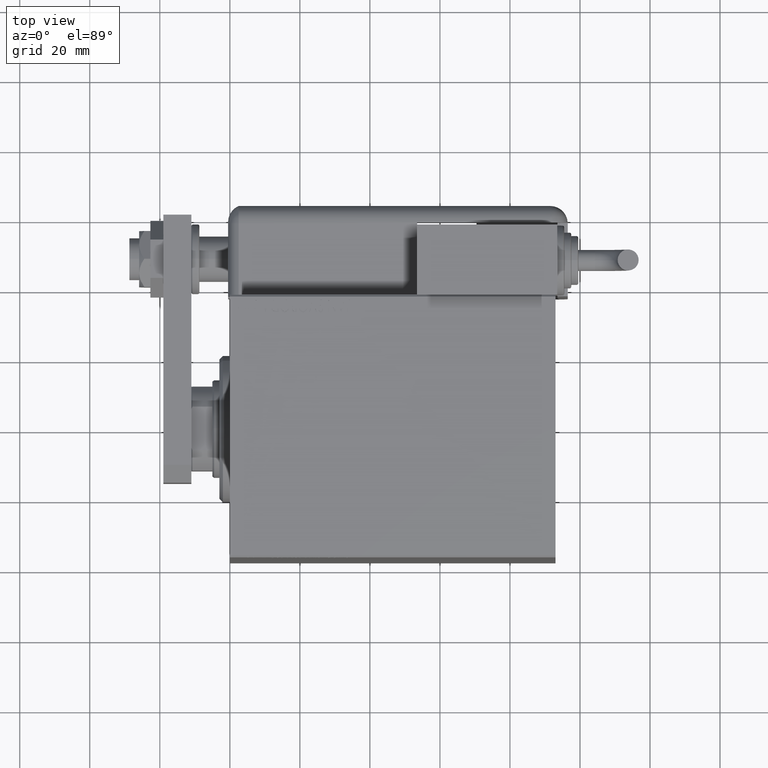
[diagram: clean part render]
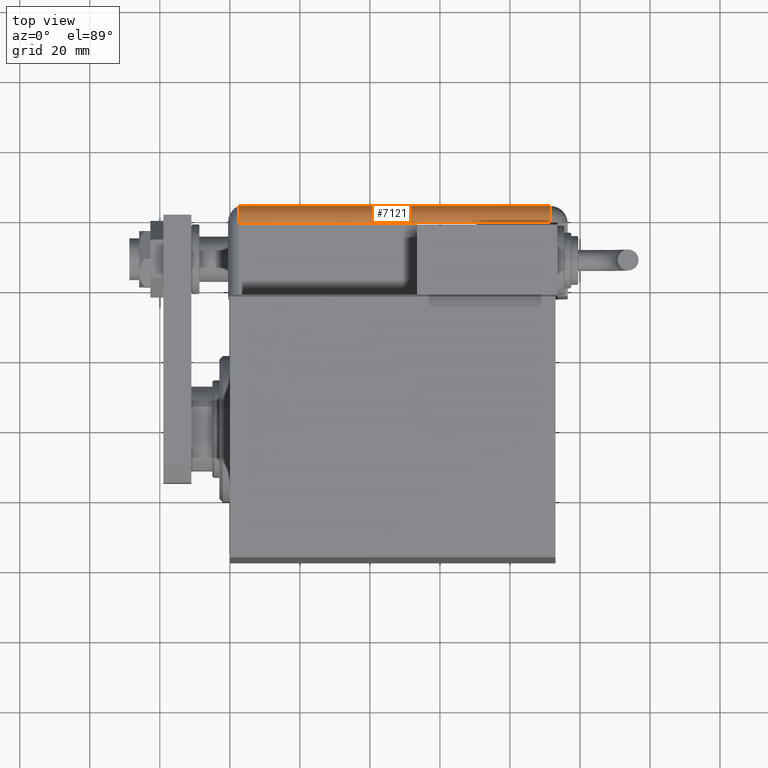
[diagram: same view with one face highlighted and labeled with its STEP entity id]
A machine part, top view. The second image highlights one B-rep face of the part: STEP entity #7121.
In plain terms, the highlighted cylindrical surface (edge-blend (fillet) strip) has radius 5 mm, axis along (1, -0, -0).
Its self-contained STEP definition (entity closure, byte-faithful):
#2319 = CARTESIAN_POINT ( 'NONE',  ( 23.99999999999999289, 20.79999999999998295, 94.00000000000000000 ) ) ;
#4536 = DIRECTION ( 'NONE',  ( -1.000000000000000000, 0.000000000000000000, 0.000000000000000000 ) ) ;
#4869 = DIRECTION ( 'NONE',  ( -0.000000000000000000, -0.000000000000000000, 1.000000000000000000 ) ) ;
#5265 = CIRCLE ( 'NONE', #27474, 5.000000000000000888 ) ;
#7121 = ADVANCED_FACE ( 'NONE', ( #57647 ), #15946, .T. ) ;
#7590 = ORIENTED_EDGE ( 'NONE', *, *, #48557, .T. ) ;
#9721 = EDGE_CURVE ( 'NONE', #41549, #52430, #21971, .T. ) ;
#10032 = VERTEX_POINT ( 'NONE', #45462 ) ;
#11039 = AXIS2_PLACEMENT_3D ( 'NONE', #50483, #45977, #4536 ) ;
#11258 = VECTOR ( 'NONE', #33477, 1000.000000000000000 ) ;
#12868 = DIRECTION ( 'NONE',  ( 0.000000000000000000, 0.000000000000000000, -1.000000000000000000 ) ) ;
#13199 = EDGE_CURVE ( 'NONE', #10032, #41549, #55443, .T. ) ;
#13900 = DIRECTION ( 'NONE',  ( -0.000000000000000000, 0.000000000000000000, -1.000000000000000000 ) ) ;
#14345 = VERTEX_POINT ( 'NONE', #28152 ) ;
#14864 = ORIENTED_EDGE ( 'NONE', *, *, #22032, .F. ) ;
#15021 = CARTESIAN_POINT ( 'NONE',  ( 28.99599839871871154, 20.99999999999998579, 94.00000000000000000 ) ) ;
#15287 = AXIS2_PLACEMENT_3D ( 'NONE', #50773, #13900, #37202 ) ;
#15946 = CYLINDRICAL_SURFACE ( 'NONE', #57174, 5.000000000000000888 ) ;
#16468 = VERTEX_POINT ( 'NONE', #28254 ) ;
#19575 = DIRECTION ( 'NONE',  ( 0.000000000000000000, 0.000000000000000000, -1.000000000000000000 ) ) ;
#19877 = DIRECTION ( 'NONE',  ( -1.000000000000000000, 0.000000000000000000, 0.000000000000000000 ) ) ;
#21971 = LINE ( 'NONE', #54285, #27369 ) ;
#22032 = EDGE_CURVE ( 'NONE', #14345, #10032, #27520, .T. ) ;
#22354 = EDGE_CURVE ( 'NONE', #29926, #16468, #55831, .T. ) ;
#23333 = DIRECTION ( 'NONE',  ( -1.000000000000000000, 0.000000000000000000, 0.000000000000000000 ) ) ;
#24090 = ORIENTED_EDGE ( 'NONE', *, *, #57438, .F. ) ;
#24532 = CARTESIAN_POINT ( 'NONE',  ( 23.99999999999999289, 20.79999999999998295, 5.000000000000004441 ) ) ;
#25321 = EDGE_LOOP ( 'NONE', ( #24090, #47609, #7590, #36605, #54915, #14864 ) ) ;
#27369 = VECTOR ( 'NONE', #12868, 1000.000000000000000 ) ;
#27474 = AXIS2_PLACEMENT_3D ( 'NONE', #24532, #4869, #23333 ) ;
#27520 = LINE ( 'NONE', #45950, #40245 ) ;
#28152 = CARTESIAN_POINT ( 'NONE',  ( 28.99999999999999645, 20.79999999999998295, 43.00000000000000000 ) ) ;
#28254 = CARTESIAN_POINT ( 'NONE',  ( 28.99599839871871154, 20.99999999999999289, 43.00000000000000000 ) ) ;
#29926 = VERTEX_POINT ( 'NONE', #46416 ) ;
#33477 = DIRECTION ( 'NONE',  ( -0.000000000000000000, -0.000000000000000000, 1.000000000000000000 ) ) ;
#36605 = ORIENTED_EDGE ( 'NONE', *, *, #9721, .F. ) ;
#37202 = DIRECTION ( 'NONE',  ( 1.000000000000000000, -6.383782391594648845E-14, 0.000000000000000000 ) ) ;
#40245 = VECTOR ( 'NONE', #41428, 1000.000000000000000 ) ;
#40749 = CARTESIAN_POINT ( 'NONE',  ( 23.99999999999999289, 25.79999999999998295, 5.000000000000004441 ) ) ;
#41428 = DIRECTION ( 'NONE',  ( -0.000000000000000000, -0.000000000000000000, 1.000000000000000000 ) ) ;
#41549 = VERTEX_POINT ( 'NONE', #55692 ) ;
#45462 = CARTESIAN_POINT ( 'NONE',  ( 28.99999999999999645, 20.79999999999998295, 94.00000000000000000 ) ) ;
#45950 = CARTESIAN_POINT ( 'NONE',  ( 28.99999999999999645, 20.79999999999998295, 94.00000000000000000 ) ) ;
#45977 = DIRECTION ( 'NONE',  ( -0.000000000000000000, -0.000000000000000000, 1.000000000000000000 ) ) ;
#46416 = CARTESIAN_POINT ( 'NONE',  ( 28.99599839871871154, 21.00000000000000000, 5.000000000000004441 ) ) ;
#47609 = ORIENTED_EDGE ( 'NONE', *, *, #22354, .F. ) ;
#48557 = EDGE_CURVE ( 'NONE', #29926, #52430, #5265, .T. ) ;
#50483 = CARTESIAN_POINT ( 'NONE',  ( 23.99999999999999289, 20.79999999999998295, 94.00000000000000000 ) ) ;
#50773 = CARTESIAN_POINT ( 'NONE',  ( 23.99999999999999289, 20.79999999999998295, 43.00000000000000000 ) ) ;
#52430 = VERTEX_POINT ( 'NONE', #40749 ) ;
#54285 = CARTESIAN_POINT ( 'NONE',  ( 23.99999999999999289, 25.79999999999998295, 94.00000000000000000 ) ) ;
#54915 = ORIENTED_EDGE ( 'NONE', *, *, #13199, .F. ) ;
#55443 = CIRCLE ( 'NONE', #11039, 5.000000000000000888 ) ;
#55692 = CARTESIAN_POINT ( 'NONE',  ( 23.99999999999999289, 25.79999999999998295, 94.00000000000000000 ) ) ;
#55831 = LINE ( 'NONE', #15021, #11258 ) ;
#57174 = AXIS2_PLACEMENT_3D ( 'NONE', #2319, #19575, #19877 ) ;
#57438 = EDGE_CURVE ( 'NONE', #16468, #14345, #59691, .T. ) ;
#57647 = FACE_OUTER_BOUND ( 'NONE', #25321, .T. ) ;
#59691 = CIRCLE ( 'NONE', #15287, 5.000000000000000888 ) ;